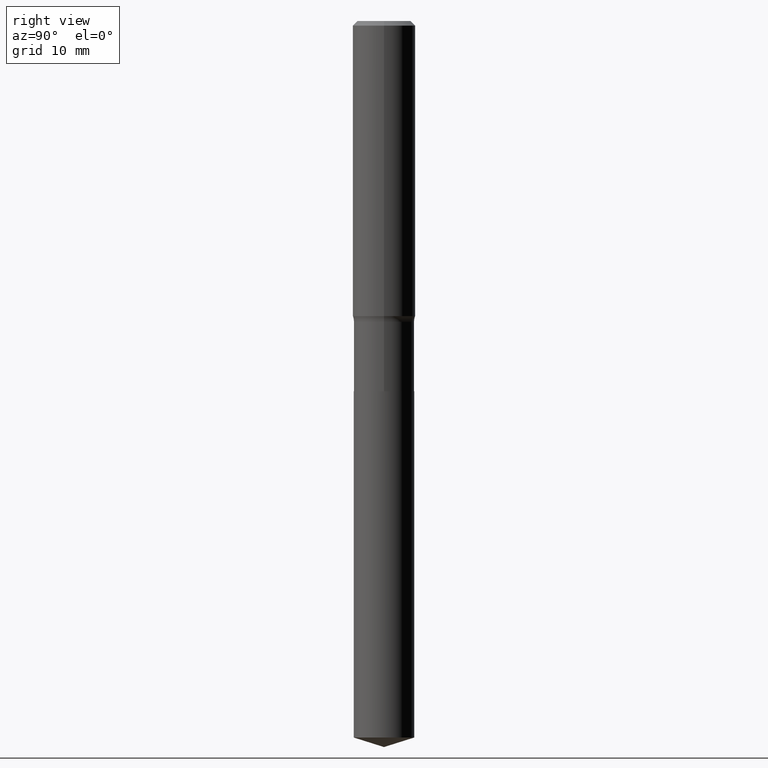
[diagram: clean part render]
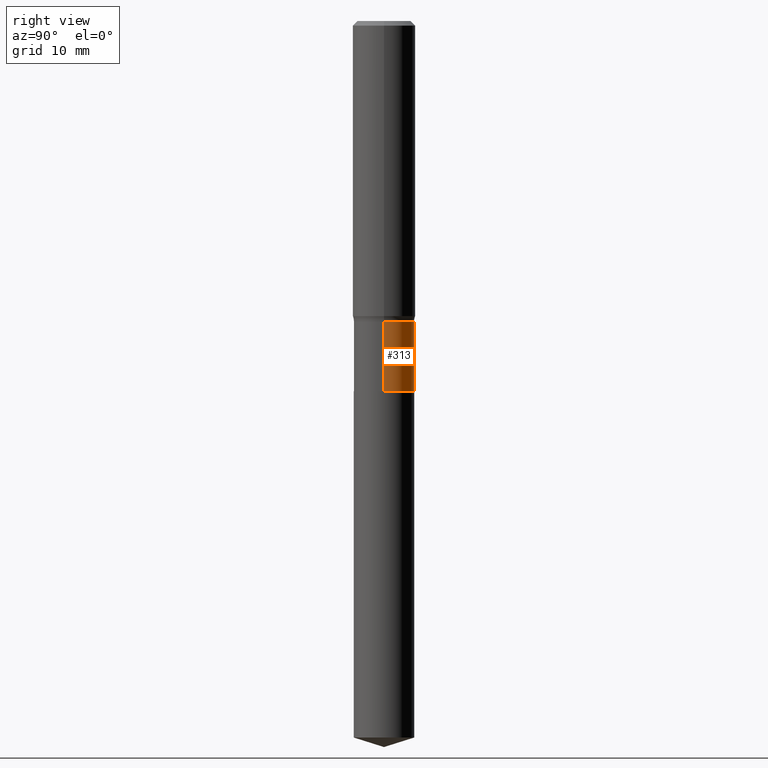
[diagram: same view with one face highlighted and labeled with its STEP entity id]
A machine part, right view. The second image highlights one B-rep face of the part: STEP entity #313.
In plain terms, the highlighted cylindrical surface (edge-blend (fillet) strip) has radius 3.8354 mm, axis along (-0, 0, 1).
Its self-contained STEP definition (entity closure, byte-faithful):
#10 = CARTESIAN_POINT ( 'NONE',  ( 0.000000000000000000, 0.000000000000000000, 0.000000000000000000 ) ) ;
#11 = CARTESIAN_POINT ( 'NONE',  ( 0.1509999999999999676, -6.297235742737493798E-15, -1.501600000000000268 ) ) ;
#30 = CARTESIAN_POINT ( 'NONE',  ( 0.1509999999999999953, -7.508081471048297583E-15, -1.848400000000000487 ) ) ;
#34 = ORIENTED_EDGE ( 'NONE', *, *, #328, .F. ) ;
#39 = VERTEX_POINT ( 'NONE', #370 ) ;
#48 = LINE ( 'NONE', #211, #384 ) ;
#51 = CIRCLE ( 'NONE', #196, 0.1509999999999999676 ) ;
#58 = EDGE_LOOP ( 'NONE', ( #77, #224, #458, #34 ) ) ;
#77 = ORIENTED_EDGE ( 'NONE', *, *, #166, .T. ) ;
#88 = CARTESIAN_POINT ( 'NONE',  ( -0.1509999999999999676, 1.072919530997751050E-15, -7.427591986284906212E-30 ) ) ;
#91 = DIRECTION ( 'NONE',  ( 1.000000000000000000, -6.982962677686266711E-15, 4.876176775795936353E-29 ) ) ;
#98 = CARTESIAN_POINT ( 'NONE',  ( 3.672115959367601524E-29, -5.242808378406868566E-15, -1.501600000000000268 ) ) ;
#112 = CARTESIAN_POINT ( 'NONE',  ( 4.520204541352607869E-29, -6.453654106717671562E-15, -1.848400000000000487 ) ) ;
#130 = AXIS2_PLACEMENT_3D ( 'NONE', #112, #457, #192 ) ;
#154 = CIRCLE ( 'NONE', #130, 0.1509999999999999953 ) ;
#166 = EDGE_CURVE ( 'NONE', #379, #221, #154, .T. ) ;
#192 = DIRECTION ( 'NONE',  ( 1.000000000000000000, -6.982962677686269077E-15, 0.000000000000000000 ) ) ;
#196 = AXIS2_PLACEMENT_3D ( 'NONE', #98, #322, #476 ) ;
#211 = CARTESIAN_POINT ( 'NONE',  ( 0.1509999999999999676, -1.054427364330626021E-15, 7.363026931451862094E-30 ) ) ;
#221 = VERTEX_POINT ( 'NONE', #460 ) ;
#224 = ORIENTED_EDGE ( 'NONE', *, *, #295, .T. ) ;
#244 = CYLINDRICAL_SURFACE ( 'NONE', #249, 0.1509999999999999676 ) ;
#249 = AXIS2_PLACEMENT_3D ( 'NONE', #10, #275, #91 ) ;
#275 = DIRECTION ( 'NONE',  ( -2.445468806185136597E-29, 3.491481338843145583E-15, 1.000000000000000000 ) ) ;
#283 = DIRECTION ( 'NONE',  ( -2.445468806185136877E-29, 3.491481338843145188E-15, 1.000000000000000000 ) ) ;
#294 = VERTEX_POINT ( 'NONE', #11 ) ;
#295 = EDGE_CURVE ( 'NONE', #221, #39, #394, .T. ) ;
#309 = VECTOR ( 'NONE', #283, 39.37007874015748143 ) ;
#313 = ADVANCED_FACE ( 'NONE', ( #387 ), #244, .T. ) ;
#322 = DIRECTION ( 'NONE',  ( -2.445468806185136597E-29, 3.491481338843145583E-15, 1.000000000000000000 ) ) ;
#328 = EDGE_CURVE ( 'NONE', #379, #294, #48, .T. ) ;
#344 = DIRECTION ( 'NONE',  ( -2.445468806185136877E-29, 3.491481338843145188E-15, 1.000000000000000000 ) ) ;
#370 = CARTESIAN_POINT ( 'NONE',  ( -0.1509999999999999676, -4.775311711564519013E-15, -1.501600000000000268 ) ) ;
#379 = VERTEX_POINT ( 'NONE', #30 ) ;
#384 = VECTOR ( 'NONE', #344, 39.37007874015748143 ) ;
#387 = FACE_OUTER_BOUND ( 'NONE', #58, .T. ) ;
#394 = LINE ( 'NONE', #88, #309 ) ;
#451 = EDGE_CURVE ( 'NONE', #294, #39, #51, .T. ) ;
#457 = DIRECTION ( 'NONE',  ( -2.445468806185136597E-29, 3.491481338843145583E-15, 1.000000000000000000 ) ) ;
#458 = ORIENTED_EDGE ( 'NONE', *, *, #451, .F. ) ;
#460 = CARTESIAN_POINT ( 'NONE',  ( -0.1509999999999999953, -4.775311711564519013E-15, -1.848400000000000487 ) ) ;
#476 = DIRECTION ( 'NONE',  ( 1.000000000000000000, -6.982962677686263555E-15, 0.000000000000000000 ) ) ;